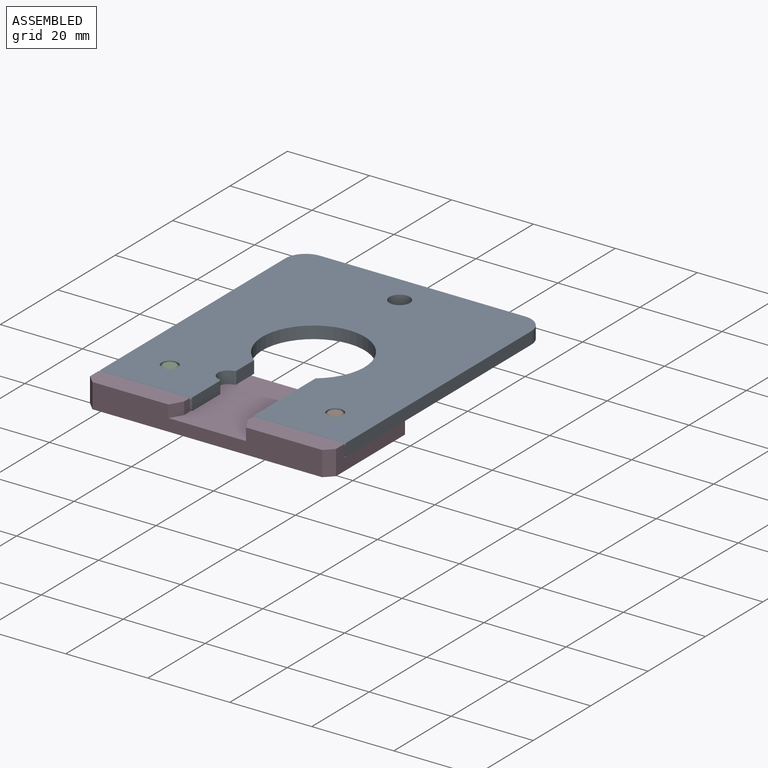
[diagram: assembled view]
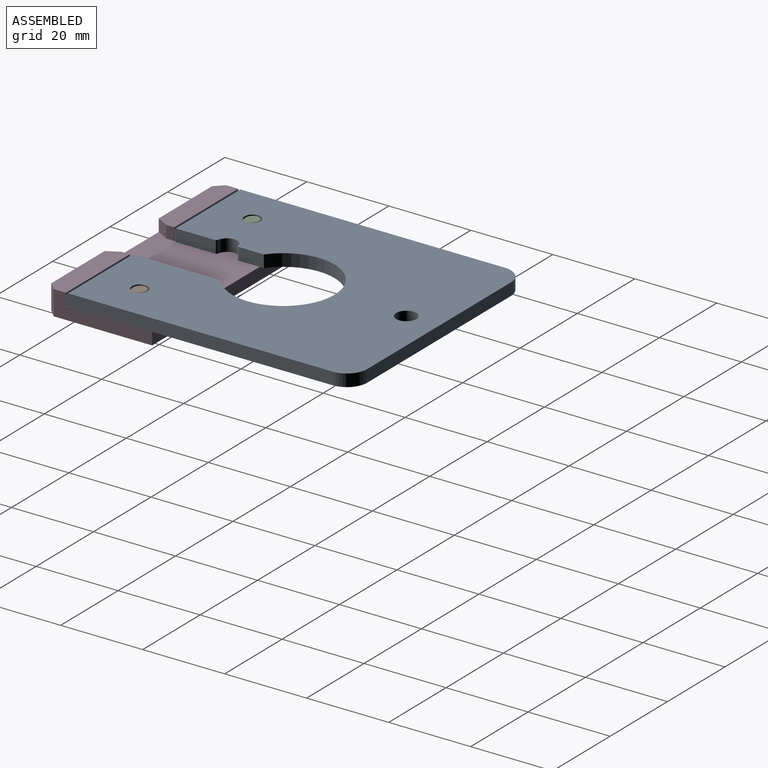
[diagram: assembled view, second angle]
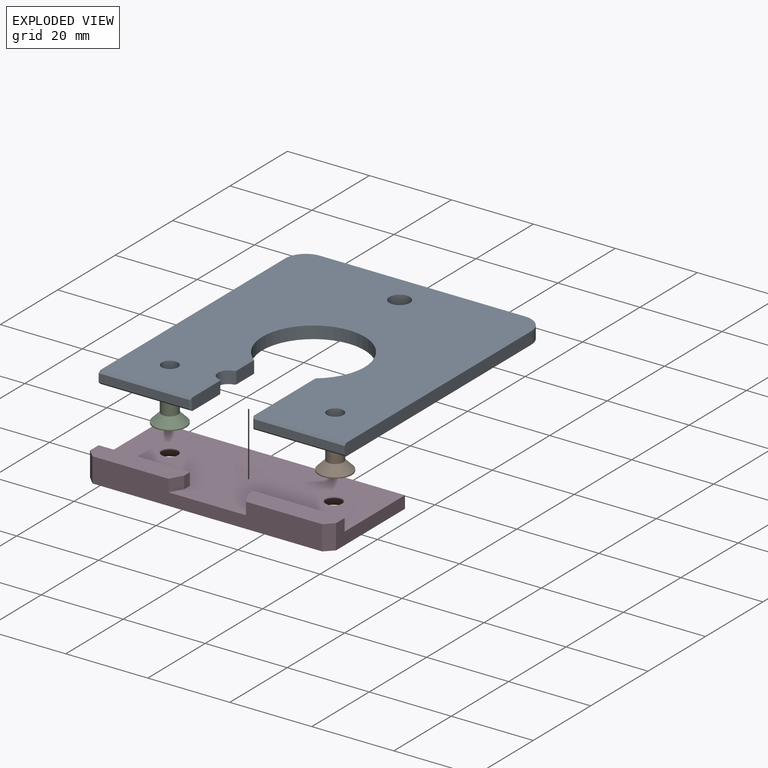
[diagram: exploded view]
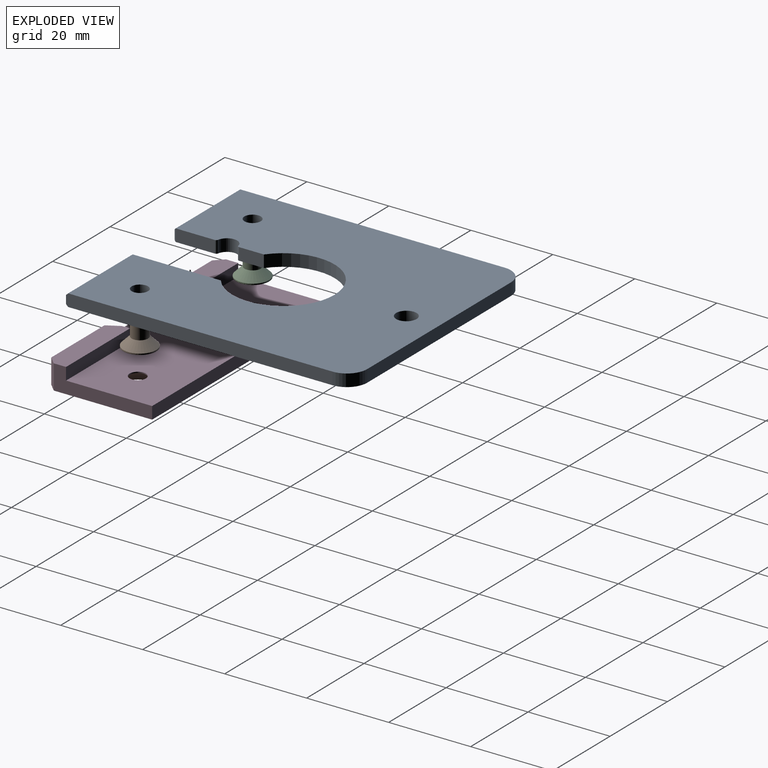
[diagram: exploded view, second angle]
ASSEMBLY  parts=4 mates=3
PART A: 25 faces, bbox 60x70x3 mm
  f0: plane 22x2mm, normal (0,-1,0), area 44mm2, adj f1,f17,f20,f22
  f1: plane 65x3mm, normal (1,0,0), area 194.8mm2, adj f0,f11,f12,f13,f17,f20
  f2: plane 50x3mm, normal (0,1,0), area 150mm2, adj f11,f12,f13,f14
  f3: plane 65x3mm, normal (-1,0,0), area 194.8mm2, adj f4,f11,f12,f14,f18,f19
  f4: plane 22x2mm, normal (0,-1,0), area 44mm2, adj f3,f18,f19,f21
  f5: plane 9.54x3mm, normal (1,0,0), area 28.6mm2, adj f11,f12,f21,f23
  f6: cylinder r=2.5mm len=4.93mm, axis (0,0,-1), area 21.1mm2, adj f11,f12,f23,f24
  f7: plane 6.04x3mm, normal (1,0,0), area 18.1mm2, adj f8,f11,f12,f24
  f8: cylinder r=12.5mm len=25mm, axis (0,0,-1), area 187.4mm2, adj f7,f10,f11,f12
  f9: cylinder r=2.5mm len=5mm, axis (0,0,-1), area 47.1mm2, adj f11,f12
  f10: plane 21.5x3mm, normal (-1,0,0), area 64.5mm2, adj f8,f11,f12,f22
  f11: plane 69.5x60mm, normal (0,0,1), area 3316.8mm2, adj f1,f2,f3,f5,f6,f7,f8,f9
  f12: plane 69.5x60mm, normal (0,0,-1), area 3316.8mm2, adj f1,f2,f3,f5,f6,f7,f8,f9
  f13: cylinder r=5mm len=5mm, axis (0,0,-1), area 23.6mm2, adj f1,f2,f11,f12
  f14: cylinder r=5mm len=5mm, axis (0,0,-1), area 23.6mm2, adj f2,f3,f11,f12
  f15: cylinder r=2mm len=4mm, axis (0,0,1), area 37.7mm2, adj f11,f12
  f16: cylinder r=2mm len=4mm, axis (0,0,1), area 37.7mm2, adj f11,f12
  f17: plane 22.5x0.5mm, normal (0,-0.71,-0.71), area 15.8mm2, adj f0,f1,f12,f22
  f18: plane 22.5x0.5mm, normal (0,-0.71,-0.71), area 15.8mm2, adj f3,f4,f12,f21
  f19: plane 22.5x0.5mm, normal (0,-0.71,0.71), area 15.8mm2, adj f3,f4,f11,f21
  f20: plane 22.5x0.5mm, normal (0,-0.71,0.71), area 15.8mm2, adj f0,f1,f11,f22
  f21: cylinder r=0.5mm len=3mm, axis (0,0,-1), area 1.9mm2, adj f4,f5,f18,f19
  f22: cylinder r=0.5mm len=3mm, axis (0,0,1), area 1.9mm2, adj f0,f10,f17,f20
  f23: cylinder r=0.5mm len=3mm, axis (0,0,-1), area 2.1mm2, adj f5,f6,f11,f12
  f24: cylinder r=0.5mm len=3mm, axis (0,0,-1), area 2.1mm2, adj f6,f7,f11,f12
PART B: 13 faces, bbox 8x6x8 mm
  f0: plane 8x8mm, normal (0,-1,0), area 42.5mm2, adj f1,f5,f6,f7,f8,f9,f10
  f1: cylinder r=4mm len=8mm, axis (0,1,0), area 7.5mm2, adj f0,f2
  f2: cone r=2mm half-angle=45deg, axis (0,-1,0), area 53.3mm2, adj f1,f3
  f3: cylinder r=2mm len=4mm, axis (0,1,0), area 40.2mm2, adj f2,f12
  f4: plane 3x3mm, normal (0,1,0), area 7.1mm2, adj f12
  f5: plane 1.5x1.5mm, normal (0.5,0,0.87), area 2.6mm2, adj f0,f6,f10,f11
  f6: plane 1.5x1.5mm, normal (-0.5,0,0.87), area 2.6mm2, adj f0,f5,f7,f11
  f7: plane 1.73x1.5mm, normal (-1,0,0), area 2.6mm2, adj f0,f6,f8,f11
  f8: plane 1.5x1.5mm, normal (-0.5,0,-0.87), area 2.6mm2, adj f0,f7,f9,f11
  f9: plane 1.5x1.5mm, normal (0.5,0,-0.87), area 2.6mm2, adj f0,f8,f10,f11
  f10: plane 1.73x1.5mm, normal (1,0,0), area 2.6mm2, adj f0,f5,f9,f11
  f11: plane 3.46x3mm, normal (0,-1,0), area 7.8mm2, adj f5,f6,f7,f8,f9,f10
  f12: cone r=1.5mm half-angle=45deg, axis (0,-1,0), area 7.8mm2, adj f3,f4
PART C: same geometry as B
PART D: 20 faces, bbox 60x26x6 mm
  f0: plane 22.25x5mm, normal (0,0,1), area 106.7mm2, adj f1,f2,f4,f10,f12,f18
  f1: plane 22.25x3mm, normal (0,1,0), area 66.7mm2, adj f0,f2,f9,f10
  f2: plane 24x6mm, normal (-1,0,0), area 81mm2, adj f0,f1,f3,f7,f9,f18
  f3: plane 60x3mm, normal (0,1,0), area 180mm2, adj f2,f5,f7,f9
  f4: plane 56x6mm, normal (0,-1,0), area 279.3mm2, adj f0,f6,f7,f9,f12,f13,f18,f19
  f5: plane 24x6mm, normal (1,0,0), area 81mm2, adj f3,f6,f7,f8,f9,f19
  f6: plane 22.25x5mm, normal (0,0,1), area 106.7mm2, adj f4,f5,f8,f11,f13,f19
  f7: plane 60x26mm, normal (0,0,-1), area 1414.2mm2, adj f2,f3,f4,f5,f16,f17,f18,f19
  f8: plane 22.25x3mm, normal (0,1,0), area 66.7mm2, adj f5,f6,f9,f11
  f9: plane 60x26mm, normal (0,0,1), area 1317.5mm2, adj f1,f2,f3,f4,f5,f8,f10,f11
  f10: plane 3x2mm, normal (1,0,0), area 6mm2, adj f0,f1,f9,f12
  f11: plane 3x2mm, normal (-1,0,0), area 6mm2, adj f6,f8,f9,f13
  f12: plane 3x3mm, normal (0.87,-0.49,0), area 10.3mm2, adj f0,f4,f9,f10
  f13: plane 3x3mm, normal (-0.87,-0.49,0), area 10.3mm2, adj f4,f6,f9,f11
  f14: cylinder r=2mm len=4mm, axis (0,0,1), area 3.1mm2, adj f9,f16
  f15: cylinder r=2mm len=4mm, axis (0,0,1), area 3.1mm2, adj f9,f17
  f16: cone r=4.75mm half-angle=45deg, axis (0,0,-1), area 82.5mm2, adj f7,f14
  f17: cone r=4.75mm half-angle=45deg, axis (0,0,-1), area 82.5mm2, adj f7,f15
  f18: plane 6x2mm, normal (-0.71,-0.71,0), area 17mm2, adj f0,f2,f4,f7
  f19: plane 6x2mm, normal (0.71,-0.71,0), area 17mm2, adj f4,f5,f6,f7
PLACE A t=(-9.06,-7.04,-16.69)mm
PLACE B rot(axis=(1,0,0),90deg) t=(40.94,3.96,-19.69)mm
PLACE C rot(axis=(1,0,0),90deg) t=(0.94,3.46,-19.69)mm
PLACE D t=(-9.06,-12.04,-19.69)mm
MATE fastened C.f2 <-> A.f15  axis (0,0,1) through (0.94,3.46,-13.69)mm
MATE fastened B.f2 <-> A.f16  axis (0,0,1) through (40.94,3.96,-13.69)mm
MATE fastened A.f15 <-> D.f15  axis (0,0,-1) through (0.94,3.46,-16.69)mm
